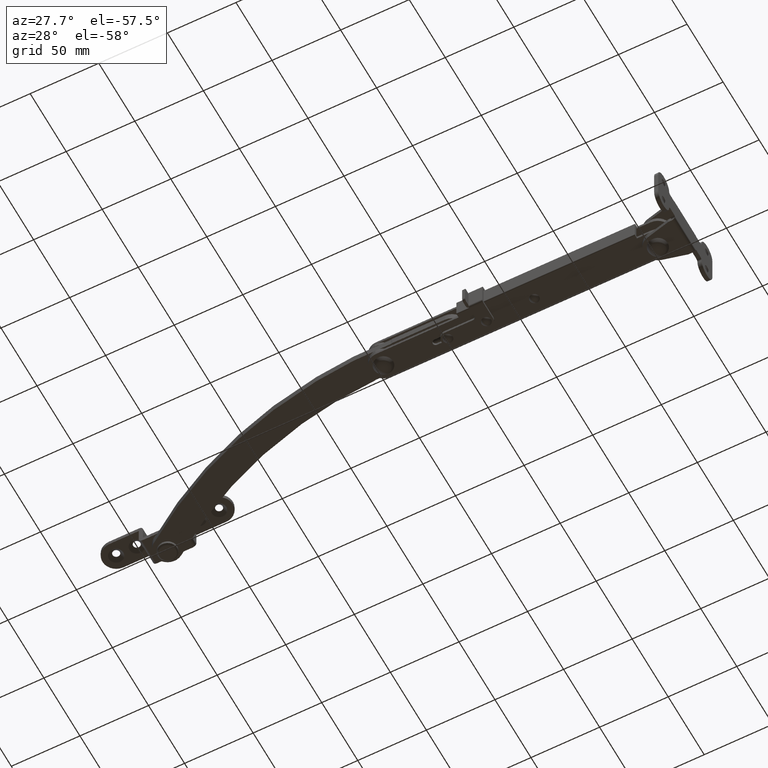
[diagram: clean part render]
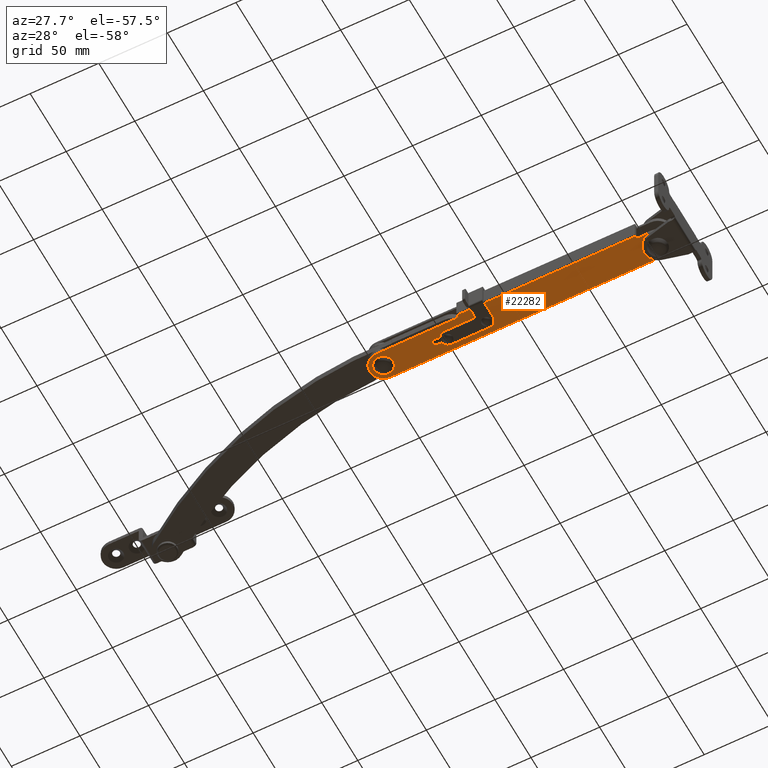
[diagram: same view with one face highlighted and labeled with its STEP entity id]
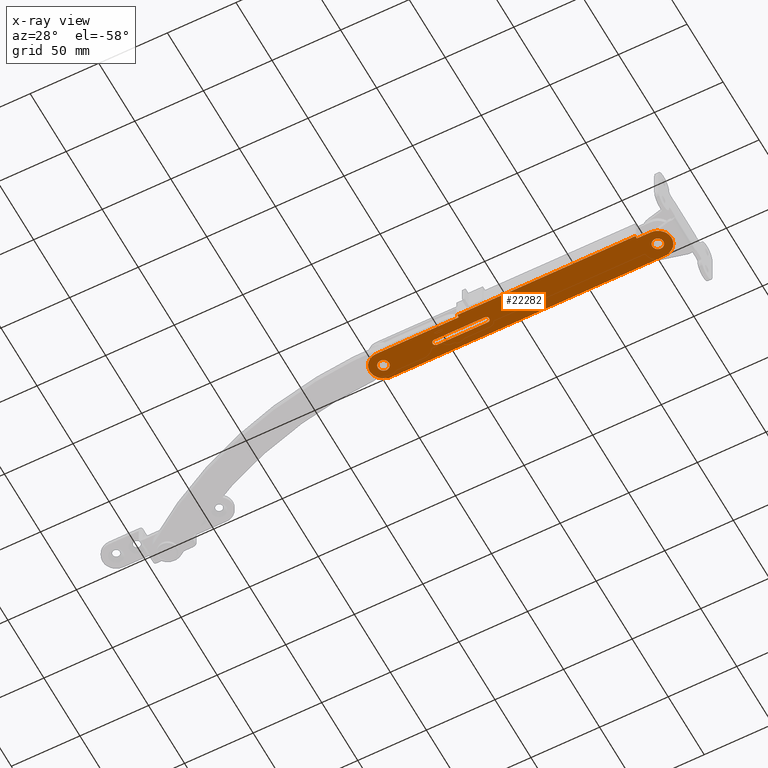
[diagram: x-ray of the same camera — body ghosted, the highlighted face saturated]
A machine part, auxiliary view. The second image highlights one B-rep face of the part: STEP entity #22282.
The next image is the same camera in x-ray: the body ghosted, the highlighted face saturated — about 0% of this face is hidden behind the body in this view.
In plain terms, the highlighted face is a freeform B-spline surface patch.
Its self-contained STEP definition (entity closure, byte-faithful):
#20061=CARTESIAN_POINT('',(-90.017453075122191,1.999923846092340,-6.999999999999998));
#20062=VERTEX_POINT('',#20061);
#20068=CARTESIAN_POINT('',(-88.0,0.0,-7.0));
#20069=VERTEX_POINT('',#20068);
#20070=CARTESIAN_POINT('',(-88.0,0.0,-7.0));
#20071=CARTESIAN_POINT('',(-88.0,2.000000000000000,-6.999999999999999));
#20072=CARTESIAN_POINT('',(-90.0,2.0,-7.0));
#20073=CARTESIAN_POINT('',(-90.008726705767089,2.000000000000000,-7.0));
#20074=CARTESIAN_POINT('',(-90.017453075122191,1.999923846092340,-6.999999999999999));
#20082=(BOUNDED_CURVE()B_SPLINE_CURVE(2,(#20070,#20071,#20072,#20073,#20074),.UNSPECIFIED.,.F.,.U.)B_SPLINE_CURVE_WITH_KNOTS((3,2,3),(0.500000000000000,0.750000000000000,0.751539895061683),.UNSPECIFIED.)CURVE()GEOMETRIC_REPRESENTATION_ITEM()RATIONAL_B_SPLINE_CURVE((1.0,0.707106781186548,1.0,0.998195900714995,0.996414026418628))REPRESENTATION_ITEM(''));
#20083=EDGE_CURVE('',#20069,#20062,#20082,.T.);
#20085=CARTESIAN_POINT('',(-89.751743990760332,-1.984532427015591,-7.000000000000001));
#20086=VERTEX_POINT('',#20085);
#20087=CARTESIAN_POINT('',(-89.751743990760332,-1.984532427015591,-7.000000000000001));
#20088=CARTESIAN_POINT('',(-88.000000000000014,-1.765397191191871,-7.0));
#20089=CARTESIAN_POINT('',(-88.0,0.0,-7.0));
#20097=(BOUNDED_CURVE()B_SPLINE_CURVE(2,(#20087,#20088,#20089),.UNSPECIFIED.,.F.,.U.)B_SPLINE_CURVE_WITH_KNOTS((3,3),(0.271473929834102,0.500000000000000),.UNSPECIFIED.)CURVE()GEOMETRIC_REPRESENTATION_ITEM()RATIONAL_B_SPLINE_CURVE((0.954005428599191,0.732265054905285,1.0))REPRESENTATION_ITEM(''));
#20098=EDGE_CURVE('',#20086,#20069,#20097,.T.);
#20148=CARTESIAN_POINT('',(-92.0,0.0,-7.0));
#20149=VERTEX_POINT('',#20148);
#20150=CARTESIAN_POINT('',(-92.0,0.0,-7.0));
#20151=CARTESIAN_POINT('',(-92.0,-2.000000000000000,-6.999999999999999));
#20152=CARTESIAN_POINT('',(-90.0,-2.0,-7.0));
#20153=CARTESIAN_POINT('',(-89.875390139793510,-2.000000000000000,-7.0));
#20154=CARTESIAN_POINT('',(-89.751743990760332,-1.984532427015591,-7.000000000000001));
#20162=(BOUNDED_CURVE()B_SPLINE_CURVE(2,(#20150,#20151,#20152,#20153,#20154),.UNSPECIFIED.,.F.,.U.)B_SPLINE_CURVE_WITH_KNOTS((3,2,3),(0.0,0.250000000000000,0.271473929834102),.UNSPECIFIED.)CURVE()GEOMETRIC_REPRESENTATION_ITEM()RATIONAL_B_SPLINE_CURVE((1.0,0.707106781186548,1.0,0.974841726281262,0.954005428599191))REPRESENTATION_ITEM(''));
#20163=EDGE_CURVE('',#20149,#20086,#20162,.T.);
#20165=CARTESIAN_POINT('',(-90.017453075122191,1.999923846092340,-6.999999999999999));
#20166=CARTESIAN_POINT('',(-92.0,1.982622413010133,-6.999999999999999));
#20167=CARTESIAN_POINT('',(-92.0,0.0,-7.0));
#20175=(BOUNDED_CURVE()B_SPLINE_CURVE(2,(#20165,#20166,#20167),.UNSPECIFIED.,.F.,.U.)B_SPLINE_CURVE_WITH_KNOTS((3,3),(0.751539895061682,1.0),.UNSPECIFIED.)CURVE()GEOMETRIC_REPRESENTATION_ITEM()RATIONAL_B_SPLINE_CURVE((0.996414026418630,0.708910880471552,1.0))REPRESENTATION_ITEM(''));
#20176=EDGE_CURVE('',#20062,#20149,#20175,.T.);
#20433=CARTESIAN_POINT('',(-200.035311472254590,4.049845788379469,-7.0));
#20434=VERTEX_POINT('',#20433);
#20440=CARTESIAN_POINT('',(-195.949969000000010,0.0,-7.0));
#20441=VERTEX_POINT('',#20440);
#20442=CARTESIAN_POINT('',(-195.949969000000010,0.0,-7.0));
#20443=CARTESIAN_POINT('',(-195.949969000000010,4.050000000000001,-6.999999999999999));
#20444=CARTESIAN_POINT('',(-199.999968999999990,4.050000000000000,-7.0));
#20445=CARTESIAN_POINT('',(-200.017640574310240,4.050000000000000,-7.0));
#20446=CARTESIAN_POINT('',(-200.035311472254560,4.049845788379469,-6.999999999999999));
#20454=(BOUNDED_CURVE()B_SPLINE_CURVE(2,(#20442,#20443,#20444,#20445,#20446),.UNSPECIFIED.,.F.,.U.)B_SPLINE_CURVE_WITH_KNOTS((3,2,3),(0.500000000000000,0.750000000000000,0.751539894638242),.UNSPECIFIED.)CURVE()GEOMETRIC_REPRESENTATION_ITEM()RATIONAL_B_SPLINE_CURVE((1.0,0.707106781186548,1.0,0.998195901211087,0.996414027398589))REPRESENTATION_ITEM(''));
#20455=EDGE_CURVE('',#20441,#20434,#20454,.T.);
#20457=CARTESIAN_POINT('',(-199.497250589896400,-4.018678165783230,-7.0));
#20458=VERTEX_POINT('',#20457);
#20459=CARTESIAN_POINT('',(-199.497250589896420,-4.018678165783230,-7.0));
#20460=CARTESIAN_POINT('',(-195.949969000000010,-3.574929327595576,-7.0));
#20461=CARTESIAN_POINT('',(-195.949969000000010,0.0,-7.0));
#20469=(BOUNDED_CURVE()B_SPLINE_CURVE(2,(#20459,#20460,#20461),.UNSPECIFIED.,.F.,.U.)B_SPLINE_CURVE_WITH_KNOTS((3,3),(0.271473929111732,0.500000000000000),.UNSPECIFIED.)CURVE()GEOMETRIC_REPRESENTATION_ITEM()RATIONAL_B_SPLINE_CURVE((0.954005430001032,0.732265054058976,1.0))REPRESENTATION_ITEM(''));
#20470=EDGE_CURVE('',#20458,#20441,#20469,.T.);
#20520=CARTESIAN_POINT('',(-204.049969000000000,0.0,-7.0));
#20521=VERTEX_POINT('',#20520);
#20522=CARTESIAN_POINT('',(-204.049969000000000,0.0,-7.0));
#20523=CARTESIAN_POINT('',(-204.049968999999980,-4.050000000000001,-6.999999999999999));
#20524=CARTESIAN_POINT('',(-199.999968999999990,-4.050000000000000,-7.0));
#20525=CARTESIAN_POINT('',(-199.747634041789380,-4.050000000000000,-7.0));
#20526=CARTESIAN_POINT('',(-199.497250589896400,-4.018678165783229,-7.0));
#20534=(BOUNDED_CURVE()B_SPLINE_CURVE(2,(#20522,#20523,#20524,#20525,#20526),.UNSPECIFIED.,.F.,.U.)B_SPLINE_CURVE_WITH_KNOTS((3,2,3),(0.0,0.250000000000000,0.271473929111732),.UNSPECIFIED.)CURVE()GEOMETRIC_REPRESENTATION_ITEM()RATIONAL_B_SPLINE_CURVE((1.0,0.707106781186548,1.0,0.974841727127572,0.954005430001032))REPRESENTATION_ITEM(''));
#20535=EDGE_CURVE('',#20521,#20458,#20534,.T.);
#20537=CARTESIAN_POINT('',(-200.035311472254590,4.049845788379469,-6.999999999999999));
#20538=CARTESIAN_POINT('',(-204.049969000000030,4.014810395997351,-6.999999999999999));
#20539=CARTESIAN_POINT('',(-204.049969000000000,0.0,-7.0));
#20547=(BOUNDED_CURVE()B_SPLINE_CURVE(2,(#20537,#20538,#20539),.UNSPECIFIED.,.F.,.U.)B_SPLINE_CURVE_WITH_KNOTS((3,3),(0.751539894638241,1.0),.UNSPECIFIED.)CURVE()GEOMETRIC_REPRESENTATION_ITEM()RATIONAL_B_SPLINE_CURVE((0.996414027398591,0.708910879975460,1.0))REPRESENTATION_ITEM(''));
#20548=EDGE_CURVE('',#20434,#20521,#20547,.T.);
#20805=CARTESIAN_POINT('',(-0.035342472254602,4.049845788379470,-7.0));
#20806=VERTEX_POINT('',#20805);
#20812=CARTESIAN_POINT('',(4.050000000000000,0.0,-7.0));
#20813=VERTEX_POINT('',#20812);
#20814=CARTESIAN_POINT('',(4.050000000000000,0.0,-7.0));
#20815=CARTESIAN_POINT('',(4.050000000000001,4.050000000000001,-6.999999999999999));
#20816=CARTESIAN_POINT('',(0.0,4.050000000000000,-7.0));
#20817=CARTESIAN_POINT('',(-0.017671574310232,4.050000000000000,-7.0));
#20818=CARTESIAN_POINT('',(-0.035342472254602,4.049845788379470,-6.999999999999999));
#20826=(BOUNDED_CURVE()B_SPLINE_CURVE(2,(#20814,#20815,#20816,#20817,#20818),.UNSPECIFIED.,.F.,.U.)B_SPLINE_CURVE_WITH_KNOTS((3,2,3),(0.500000000000000,0.750000000000000,0.751539894638242),.UNSPECIFIED.)CURVE()GEOMETRIC_REPRESENTATION_ITEM()RATIONAL_B_SPLINE_CURVE((1.0,0.707106781186548,1.0,0.998195901211087,0.996414027398589))REPRESENTATION_ITEM(''));
#20827=EDGE_CURVE('',#20813,#20806,#20826,.T.);
#20829=CARTESIAN_POINT('',(0.502718410103623,-4.018678165783232,-7.0));
#20830=VERTEX_POINT('',#20829);
#20831=CARTESIAN_POINT('',(0.502718410103623,-4.018678165783232,-7.000000000000001));
#20832=CARTESIAN_POINT('',(4.050000000000000,-3.574929327595584,-7.000000000000001));
#20833=CARTESIAN_POINT('',(4.050000000000000,0.0,-7.0));
#20841=(BOUNDED_CURVE()B_SPLINE_CURVE(2,(#20831,#20832,#20833),.UNSPECIFIED.,.F.,.U.)B_SPLINE_CURVE_WITH_KNOTS((3,3),(0.271473929111732,0.500000000000000),.UNSPECIFIED.)CURVE()GEOMETRIC_REPRESENTATION_ITEM()RATIONAL_B_SPLINE_CURVE((0.954005430001033,0.732265054058976,1.0))REPRESENTATION_ITEM(''));
#20842=EDGE_CURVE('',#20830,#20813,#20841,.T.);
#20892=CARTESIAN_POINT('',(-4.050000000000000,0.0,-7.0));
#20893=VERTEX_POINT('',#20892);
#20894=CARTESIAN_POINT('',(-4.050000000000000,0.0,-7.0));
#20895=CARTESIAN_POINT('',(-4.050000000000001,-4.050000000000001,-6.999999999999999));
#20896=CARTESIAN_POINT('',(0.0,-4.050000000000000,-7.0));
#20897=CARTESIAN_POINT('',(0.252334958210637,-4.050000000000000,-7.0));
#20898=CARTESIAN_POINT('',(0.502718410103623,-4.018678165783232,-7.0));
#20906=(BOUNDED_CURVE()B_SPLINE_CURVE(2,(#20894,#20895,#20896,#20897,#20898),.UNSPECIFIED.,.F.,.U.)B_SPLINE_CURVE_WITH_KNOTS((3,2,3),(0.0,0.250000000000000,0.271473929111732),.UNSPECIFIED.)CURVE()GEOMETRIC_REPRESENTATION_ITEM()RATIONAL_B_SPLINE_CURVE((1.0,0.707106781186548,1.0,0.974841727127572,0.954005430001033))REPRESENTATION_ITEM(''));
#20907=EDGE_CURVE('',#20893,#20830,#20906,.T.);
#20909=CARTESIAN_POINT('',(-0.035342472254602,4.049845788379470,-7.0));
#20910=CARTESIAN_POINT('',(-4.050000000000000,4.014810395997344,-7.0));
#20911=CARTESIAN_POINT('',(-4.050000000000000,0.0,-7.0));
#20919=(BOUNDED_CURVE()B_SPLINE_CURVE(2,(#20909,#20910,#20911),.UNSPECIFIED.,.F.,.U.)B_SPLINE_CURVE_WITH_KNOTS((3,3),(0.751539894638241,1.0),.UNSPECIFIED.)CURVE()GEOMETRIC_REPRESENTATION_ITEM()RATIONAL_B_SPLINE_CURVE((0.996414027398590,0.708910879975460,1.0))REPRESENTATION_ITEM(''));
#20920=EDGE_CURVE('',#20806,#20893,#20919,.T.);
#21141=CARTESIAN_POINT('',(-140.0,-12.0,-7.0));
#21142=VERTEX_POINT('',#21141);
#21156=CARTESIAN_POINT('',(-10.0,-12.0,-7.0));
#21157=VERTEX_POINT('',#21156);
#21158=CARTESIAN_POINT('',(-140.0,-12.0,-7.0));
#21159=CARTESIAN_POINT('',(-10.0,-12.0,-7.0));
#21160=QUASI_UNIFORM_CURVE('',1,(#21158,#21159),.UNSPECIFIED.,.F.,.U.);
#21161=EDGE_CURVE('',#21142,#21157,#21160,.T.);
#21261=CARTESIAN_POINT('',(-125.0,-2.100006000000000,-7.0));
#21262=VERTEX_POINT('',#21261);
#21268=CARTESIAN_POINT('',(-161.999969146607500,-2.100006000000045,-7.0));
#21269=VERTEX_POINT('',#21268);
#21270=CARTESIAN_POINT('',(-161.999969146607500,-2.100006000000045,-7.0));
#21271=CARTESIAN_POINT('',(-125.0,-2.100006000000000,-7.0));
#21272=QUASI_UNIFORM_CURVE('',1,(#21270,#21271),.UNSPECIFIED.,.F.,.U.);
#21273=EDGE_CURVE('',#21269,#21262,#21272,.T.);
#21319=CARTESIAN_POINT('',(-161.999968999999990,2.100006000000095,-7.0));
#21320=VERTEX_POINT('',#21319);
#21321=CARTESIAN_POINT('',(-161.999968999999990,2.100006000000095,-7.0));
#21322=CARTESIAN_POINT('',(-164.099968926696480,2.100005999999885,-7.0));
#21323=CARTESIAN_POINT('',(-164.099969000000190,0.000000073303566,-7.0));
#21324=CARTESIAN_POINT('',(-164.099969073304040,-2.100005853392756,-7.0));
#21325=CARTESIAN_POINT('',(-161.999969146607500,-2.100006000000045,-7.0));
#21333=(BOUNDED_CURVE()B_SPLINE_CURVE(2,(#21321,#21322,#21323,#21324,#21325),.UNSPECIFIED.,.F.,.U.)B_SPLINE_CURVE_WITH_KNOTS((3,2,3),(0.0,0.500000000000000,1.0),.UNSPECIFIED.)CURVE()GEOMETRIC_REPRESENTATION_ITEM()RATIONAL_B_SPLINE_CURVE((1.0,0.707106793527841,1.0,0.707106793527841,1.0))REPRESENTATION_ITEM(''));
#21334=EDGE_CURVE('',#21320,#21269,#21333,.T.);
#21357=CARTESIAN_POINT('',(-125.0,2.100006000000095,-7.0));
#21358=VERTEX_POINT('',#21357);
#21359=CARTESIAN_POINT('',(-125.0,2.100006000000095,-7.0));
#21360=CARTESIAN_POINT('',(-161.999968999999990,2.100006000000095,-7.0));
#21361=QUASI_UNIFORM_CURVE('',1,(#21359,#21360),.UNSPECIFIED.,.F.,.U.);
#21362=EDGE_CURVE('',#21358,#21320,#21361,.T.);
#21406=CARTESIAN_POINT('',(-125.0,-2.100006000000000,-7.0));
#21407=CARTESIAN_POINT('',(-122.899999999999990,-2.100006000000000,-6.999999999999999));
#21408=CARTESIAN_POINT('',(-122.900000000000010,4.751755E-014,-7.0));
#21409=CARTESIAN_POINT('',(-122.899999999999990,2.100006000000095,-6.999999999999999));
#21410=CARTESIAN_POINT('',(-125.0,2.100006000000095,-7.0));
#21418=(BOUNDED_CURVE()B_SPLINE_CURVE(2,(#21406,#21407,#21408,#21409,#21410),.UNSPECIFIED.,.F.,.U.)B_SPLINE_CURVE_WITH_KNOTS((3,2,3),(0.0,0.500000000000000,1.0),.UNSPECIFIED.)CURVE()GEOMETRIC_REPRESENTATION_ITEM()RATIONAL_B_SPLINE_CURVE((1.0,0.707106781186548,1.0,0.707106781186548,1.0))REPRESENTATION_ITEM(''));
#21419=EDGE_CURVE('',#21262,#21358,#21418,.T.);
#21835=CARTESIAN_POINT('',(-10.0,-9.999999999999799,-7.0));
#21836=VERTEX_POINT('',#21835);
#21842=CARTESIAN_POINT('',(0.0,-9.999999999999799,-7.0));
#21843=VERTEX_POINT('',#21842);
#21844=CARTESIAN_POINT('',(-10.0,-9.999999999999799,-7.0));
#21845=CARTESIAN_POINT('',(0.0,-9.999999999999799,-7.0));
#21846=QUASI_UNIFORM_CURVE('',1,(#21844,#21845),.UNSPECIFIED.,.F.,.U.);
#21847=EDGE_CURVE('',#21836,#21843,#21846,.T.);
#21871=CARTESIAN_POINT('',(-199.999968831412500,-9.999999999999799,-7.0));
#21872=VERTEX_POINT('',#21871);
#21878=CARTESIAN_POINT('',(-140.0,-9.999999999999799,-7.0));
#21879=VERTEX_POINT('',#21878);
#21880=CARTESIAN_POINT('',(-199.999968831412500,-9.999999999999799,-7.0));
#21881=CARTESIAN_POINT('',(-140.0,-9.999999999999799,-7.0));
#21882=QUASI_UNIFORM_CURVE('',1,(#21880,#21881),.UNSPECIFIED.,.F.,.U.);
#21883=EDGE_CURVE('',#21872,#21879,#21882,.T.);
#21930=CARTESIAN_POINT('',(-199.991055733914490,10.0,-7.0));
#21931=VERTEX_POINT('',#21930);
#21937=CARTESIAN_POINT('',(-199.991055733914490,10.000000000000229,-7.0));
#21938=CARTESIAN_POINT('',(-205.766538211756430,10.005147842232377,-7.0));
#21939=CARTESIAN_POINT('',(-208.657252168175600,5.005148124802156,-7.0));
#21940=CARTESIAN_POINT('',(-211.547966124594720,0.005148407371938,-7.0));
#21941=CARTESIAN_POINT('',(-208.661709864026790,-4.997425844997637,-7.0));
#21942=CARTESIAN_POINT('',(-205.775453603458830,-10.000000097367215,-7.0));
#21943=CARTESIAN_POINT('',(-199.999968831412500,-9.999999999999796,-7.0));
#21951=(BOUNDED_CURVE()B_SPLINE_CURVE(2,(#21937,#21938,#21939,#21940,#21941,#21942,#21943),.UNSPECIFIED.,.F.,.U.)B_SPLINE_CURVE_WITH_KNOTS((3,2,2,3),(0.0,0.333333333333333,0.666666666666667,1.0),.UNSPECIFIED.)CURVE()GEOMETRIC_REPRESENTATION_ITEM()RATIONAL_B_SPLINE_CURVE((1.0,0.865951115611089,1.0,0.865951115611089,1.0,0.865951115611089,1.0))REPRESENTATION_ITEM(''));
#21952=EDGE_CURVE('',#21931,#21872,#21951,.T.);
#21970=CARTESIAN_POINT('',(0.0,10.0,-7.0));
#21971=VERTEX_POINT('',#21970);
#21977=CARTESIAN_POINT('',(0.0,10.0,-7.0));
#21978=CARTESIAN_POINT('',(-199.991055733914490,10.0,-7.0));
#21979=QUASI_UNIFORM_CURVE('',1,(#21977,#21978),.UNSPECIFIED.,.F.,.U.);
#21980=EDGE_CURVE('',#21971,#21931,#21979,.T.);
#22020=CARTESIAN_POINT('',(0.0,-9.999999999999799,-7.0));
#22021=CARTESIAN_POINT('',(10.000000000000002,-10.000000000000002,-6.999999999999999));
#22022=CARTESIAN_POINT('',(10.0,0.0,-7.0));
#22023=CARTESIAN_POINT('',(10.000000000000002,10.000000000000002,-6.999999999999999));
#22024=CARTESIAN_POINT('',(0.0,10.0,-7.0));
#22032=(BOUNDED_CURVE()B_SPLINE_CURVE(2,(#22020,#22021,#22022,#22023,#22024),.UNSPECIFIED.,.F.,.U.)B_SPLINE_CURVE_WITH_KNOTS((3,2,3),(0.0,0.500000000000000,1.0),.UNSPECIFIED.)CURVE()GEOMETRIC_REPRESENTATION_ITEM()RATIONAL_B_SPLINE_CURVE((1.0,0.707106781186548,1.0,0.707106781186548,1.0))REPRESENTATION_ITEM(''));
#22033=EDGE_CURVE('',#21843,#21971,#22032,.T.);
#22090=CARTESIAN_POINT('',(-140.0,-9.999999999999799,-7.0));
#22091=CARTESIAN_POINT('',(-140.0,-12.0,-7.0));
#22092=QUASI_UNIFORM_CURVE('',1,(#22090,#22091),.UNSPECIFIED.,.F.,.U.);
#22093=EDGE_CURVE('',#21879,#21142,#22092,.T.);
#22108=CARTESIAN_POINT('',(-10.0,-12.0,-7.0));
#22109=CARTESIAN_POINT('',(-10.0,-9.999999999999799,-7.0));
#22110=QUASI_UNIFORM_CURVE('',1,(#22108,#22109),.UNSPECIFIED.,.F.,.U.);
#22111=EDGE_CURVE('',#21157,#21836,#22110,.T.);
#22243=CARTESIAN_POINT('',(20.928792148057141,11.098899957359730,-7.0));
#22244=CARTESIAN_POINT('',(-220.929173234428900,11.098899957359730,-7.0));
#22245=CARTESIAN_POINT('',(20.928792148057141,-13.098900547445719,-7.0));
#22246=CARTESIAN_POINT('',(-220.929173234428900,-13.098900547445719,-7.0));
#22247=B_SPLINE_SURFACE_WITH_KNOTS('',1,1,((#22243,#22245),(#22244,#22246)),.UNSPECIFIED.,.F.,.F.,.U.,(2,2),(2,2),(0.0,241.857965382486100),(0.0,24.197800504805450),.UNSPECIFIED.);
#22248=ORIENTED_EDGE('',*,*,#22093,.F.);
#22249=ORIENTED_EDGE('',*,*,#21883,.F.);
#22250=ORIENTED_EDGE('',*,*,#21952,.F.);
#22251=ORIENTED_EDGE('',*,*,#21980,.F.);
#22252=ORIENTED_EDGE('',*,*,#22033,.F.);
#22253=ORIENTED_EDGE('',*,*,#21847,.F.);
#22254=ORIENTED_EDGE('',*,*,#22111,.F.);
#22255=ORIENTED_EDGE('',*,*,#21161,.F.);
#22256=EDGE_LOOP('',(#22248,#22249,#22250,#22251,#22252,#22253,#22254,#22255));
#22257=FACE_OUTER_BOUND('',#22256,.T.);
#22258=ORIENTED_EDGE('',*,*,#21419,.T.);
#22259=ORIENTED_EDGE('',*,*,#21362,.T.);
#22260=ORIENTED_EDGE('',*,*,#21334,.T.);
#22261=ORIENTED_EDGE('',*,*,#21273,.T.);
#22262=EDGE_LOOP('',(#22258,#22259,#22260,#22261));
#22263=FACE_BOUND('',#22262,.T.);
#22264=ORIENTED_EDGE('',*,*,#20827,.T.);
#22265=ORIENTED_EDGE('',*,*,#20920,.T.);
#22266=ORIENTED_EDGE('',*,*,#20907,.T.);
#22267=ORIENTED_EDGE('',*,*,#20842,.T.);
#22268=EDGE_LOOP('',(#22264,#22265,#22266,#22267));
#22269=FACE_BOUND('',#22268,.T.);
#22270=ORIENTED_EDGE('',*,*,#20455,.T.);
#22271=ORIENTED_EDGE('',*,*,#20548,.T.);
#22272=ORIENTED_EDGE('',*,*,#20535,.T.);
#22273=ORIENTED_EDGE('',*,*,#20470,.T.);
#22274=EDGE_LOOP('',(#22270,#22271,#22272,#22273));
#22275=FACE_BOUND('',#22274,.T.);
#22276=ORIENTED_EDGE('',*,*,#20083,.T.);
#22277=ORIENTED_EDGE('',*,*,#20176,.T.);
#22278=ORIENTED_EDGE('',*,*,#20163,.T.);
#22279=ORIENTED_EDGE('',*,*,#20098,.T.);
#22280=EDGE_LOOP('',(#22276,#22277,#22278,#22279));
#22281=FACE_BOUND('',#22280,.T.);
#22282=ADVANCED_FACE('',(#22257,#22263,#22269,#22275,#22281),#22247,.F.);